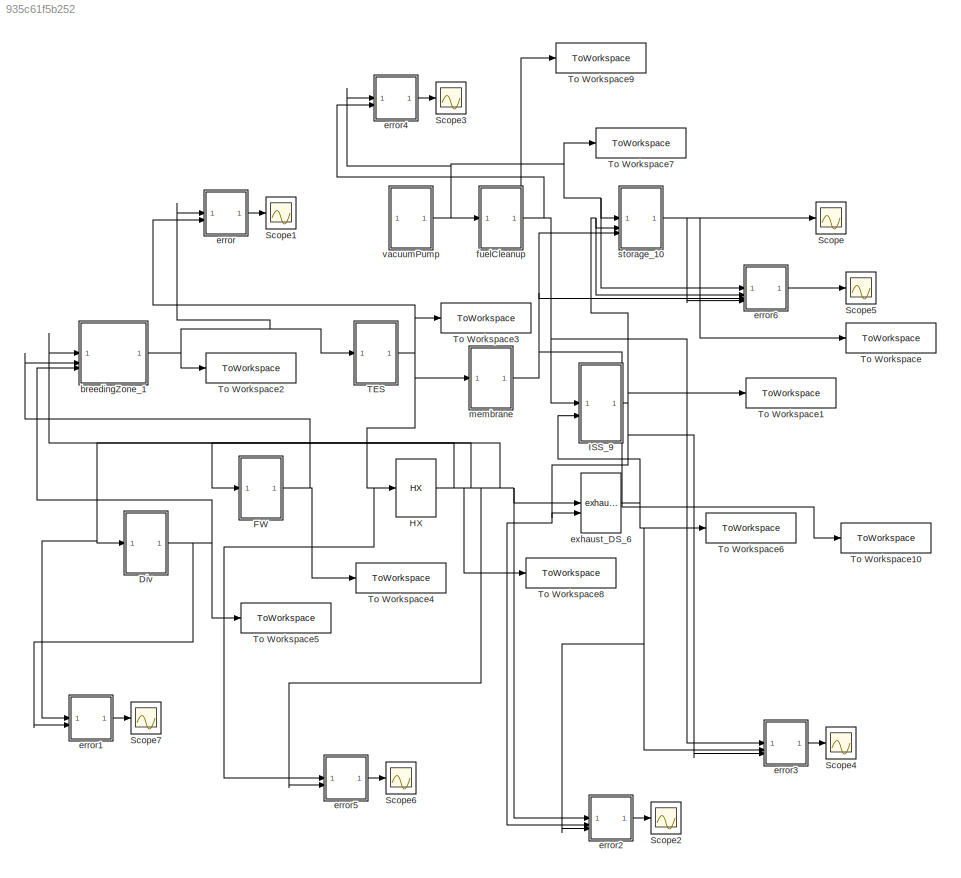
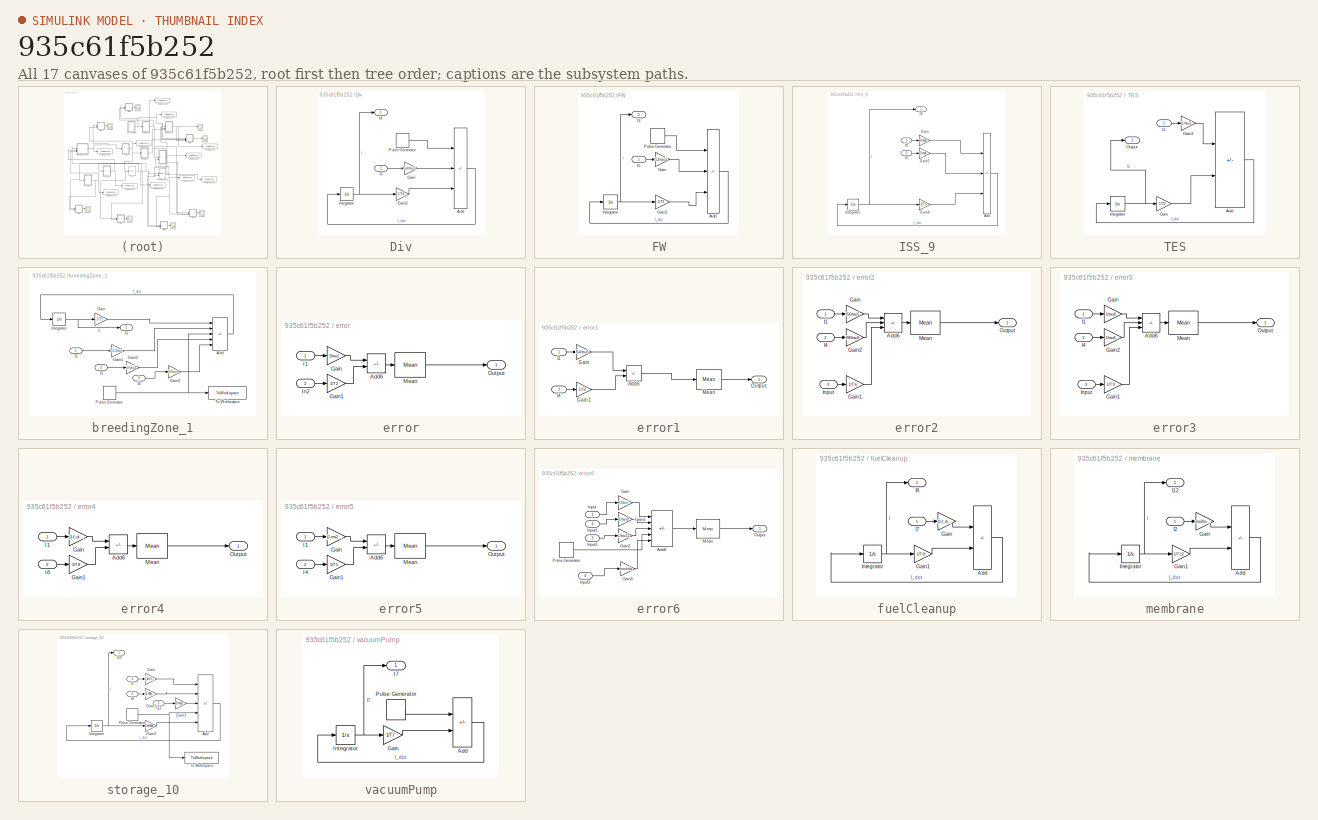
[diagram: thumbnail index - all 17 canvases of the model, root first then tree order]
MODEL slx_935c61f5b252
KIND model
CONFIG AbsTol = auto
CONFIG EnableMultiTasking = off
CONFIG FixedStep = auto
CONFIG MaxStep = auto
CONFIG MinStep = auto
CONFIG RelTol = 1e-4
CONFIG SampleTimeConstraint = Unconstrained
CONFIG SolverName = VariableStepAuto
CONFIG StartTime = 0.0
CONFIG StopTime = sim_time
BLOCK [SubSystem] Div
  AncestorBlock = arc/divertor_4
  LibrarySourceBlock = arc/divertor_4
BLOCK [Sum] Div/Add
  IconShape = rectangular
  Inputs = ++-
BLOCK [Gain] Div/Gain
  Gain = f54/tau5
BLOCK [Gain] Div/Gain2
  Gain = 1/T4
BLOCK [Outport] Div/I4
BLOCK [Inport] Div/I5
BLOCK [Integrator] Div/Integrator
BLOCK [DiscretePulseGenerator] Div/Pulse Generator
  Amplitude = fp4*N_dot/TBE
  Period = 1800
  PulseType = Time based
  PulseWidth = AF
BLOCK [SubSystem] FW
  AncestorBlock = arc/FW_3
  LibrarySourceBlock = arc/FW_3
BLOCK [Sum] FW/Add
  IconShape = rectangular
  Inputs = ++-
BLOCK [Gain] FW/Gain
  Gain = f53/tau5
BLOCK [Gain] FW/Gain2
  Gain = 1/T3
BLOCK [Outport] FW/I3
BLOCK [Inport] FW/I5
BLOCK [Integrator] FW/Integrator
BLOCK [DiscretePulseGenerator] FW/Pulse Generator
  Amplitude = fp3*N_dot/TBE
  Period = 1800
  PulseType = Time based
  PulseWidth = AF
BLOCK [Reference] HX  REF=arc/HX  (lib defined in slx_1c6c746fb95a, slx_383ab6a6d68a, +1 more)
  SourceBlock = arc/HX
  SourceType = SubSystem
  Tag = HX
BLOCK [SubSystem] ISS_9
  AncestorBlock = arc/ISS_9
  LibrarySourceBlock = arc/ISS_9
BLOCK [Sum] ISS_9/Add
  IconShape = rectangular
  Inputs = ++-
BLOCK [Gain] ISS_9/Gain
  Gain = 1/tau8
BLOCK [Gain] ISS_9/Gain1
  Gain = 1/tau6
BLOCK [Gain] ISS_9/Gain4
  Gain = 1/T9
BLOCK [Inport] ISS_9/I6
  Port = 2
BLOCK [Inport] ISS_9/I8
BLOCK [Outport] ISS_9/I9
BLOCK [Integrator] ISS_9/Integrator
BLOCK [Scope] Scope
  Floating = off
  NumInputPorts = 1
  ScopeSpecificationString = Simulink.scopes.TimeScopeBlockCfg('CurrentConfiguration', extmgr.ConfigurationSet(extmgr.Configuration('Core','General UI',true),extmgr.Configuration('Core','Source UI',true),extmgr.Configuration('Sources','WiredSimulink',true,'DataLogging',true),extmgr.Configuration('Visuals','Time Domain',true,'SerializedDisplays',{struct('MinYLimReal','0.58142','MaxYLimReal','4.3803','YLabelReal','','MinYLimMag...<+1343ch>
BLOCK [Scope] Scope1
  Floating = off
  NumInputPorts = 1
  ScopeSpecificationString = Simulink.scopes.TimeScopeBlockCfg('CurrentConfiguration', extmgr.ConfigurationSet(extmgr.Configuration('Core','General UI',true),extmgr.Configuration('Core','Source UI',true),extmgr.Configuration('Sources','WiredSimulink',true,'DataLoggingVariableName','ScopeData1'),extmgr.Configuration('Visuals','Time Domain',true,'SerializedDisplays',{struct('MinYLimReal','-0.0000000007','MaxYLimReal','0.0000000...<+1423ch>
BLOCK [Scope] Scope2
  Floating = off
  NumInputPorts = 1
  ScopeSpecificationString = Simulink.scopes.TimeScopeBlockCfg('CurrentConfiguration', extmgr.ConfigurationSet(extmgr.Configuration('Core','General UI',true),extmgr.Configuration('Core','Source UI',true),extmgr.Configuration('Sources','WiredSimulink',true,'DataLoggingVariableName','ScopeData2'),extmgr.Configuration('Visuals','Time Domain',true,'SerializedDisplays',{struct('MinYLimReal','-0.00000004','MaxYLimReal','0.0000004',...<+1385ch>
BLOCK [Scope] Scope3
  Floating = off
  NumInputPorts = 1
  ScopeSpecificationString = Simulink.scopes.TimeScopeBlockCfg('CurrentConfiguration', extmgr.ConfigurationSet(extmgr.Configuration('Core','General UI',true),extmgr.Configuration('Core','Source UI',true),extmgr.Configuration('Sources','WiredSimulink',true,'DataLoggingVariableName','ScopeData4'),extmgr.Configuration('Visuals','Time Domain',true,'SerializedDisplays',{struct('MinYLimReal','-0.000002','MaxYLimReal','0.000014','YL...<+1373ch>
BLOCK [Scope] Scope4
  Floating = off
  NumInputPorts = 1
  ScopeSpecificationString = Simulink.scopes.TimeScopeBlockCfg('CurrentConfiguration', extmgr.ConfigurationSet(extmgr.Configuration('Core','General UI',true),extmgr.Configuration('Core','Source UI',true),extmgr.Configuration('Sources','WiredSimulink',true,'DataLoggingVariableName','ScopeData3'),extmgr.Configuration('Visuals','Time Domain',true,'SerializedDisplays',{struct('MinYLimReal','-0.0000000007','MaxYLimReal','0.0000000...<+1424ch>
BLOCK [Scope] Scope5
  Floating = off
  NumInputPorts = 1
  ScopeSpecificationString = Simulink.scopes.TimeScopeBlockCfg('CurrentConfiguration', extmgr.ConfigurationSet(extmgr.Configuration('Core','General UI',true),extmgr.Configuration('Core','Source UI',true),extmgr.Configuration('Sources','WiredSimulink',true,'DataLogging',true,'DataLoggingVariableName','ScopeData1'),extmgr.Configuration('Visuals','Time Domain',true,'SerializedDisplays',{struct('MinYLimReal','-0.000004','MaxYLimR...<+1415ch>
BLOCK [Scope] Scope6
  Floating = off
  NumInputPorts = 1
  ScopeSpecificationString = Simulink.scopes.TimeScopeBlockCfg('CurrentConfiguration', extmgr.ConfigurationSet(extmgr.Configuration('Core','General UI',true),extmgr.Configuration('Core','Source UI',true),extmgr.Configuration('Sources','WiredSimulink',true,'DataLoggingVariableName','ScopeData5'),extmgr.Configuration('Visuals','Time Domain',true,'SerializedDisplays',{struct('MinYLimReal','-0.00000000004','MaxYLimReal','0.000000...<+1413ch>
BLOCK [Scope] Scope7
  Floating = off
  NumInputPorts = 1
  ScopeSpecificationString = Simulink.scopes.TimeScopeBlockCfg('CurrentConfiguration', extmgr.ConfigurationSet(extmgr.Configuration('Core','General UI',true),extmgr.Configuration('Core','Source UI',true),extmgr.Configuration('Sources','WiredSimulink',true,'DataLoggingVariableName','ScopeData1'),extmgr.Configuration('Visuals','Time Domain',true,'SerializedDisplays',{struct('MinYLimReal','-0.000000006','MaxYLimReal','0.00000002...<+1397ch>
BLOCK [SubSystem] TES
  AncestorBlock = arc/TES_2
  LibrarySourceBlock = arc/TES_2
BLOCK [Sum] TES/Add
  IconShape = rectangular
  Inputs = +-
BLOCK [Gain] TES/Gain
  Gain = 1/T2
BLOCK [Gain] TES/Gain1
  Gain = 1/tau1
BLOCK [Inport] TES/I1
BLOCK [Integrator] TES/Integrator
BLOCK [Outport] TES/Output
  IconDisplay = Signal name
BLOCK [ToWorkspace] To Workspace
  FixptAsFi = on
  MaxDataPoints = inf
  SampleTime = -1
  VariableName = I_11
BLOCK [ToWorkspace] To Workspace1
  FixptAsFi = on
  MaxDataPoints = inf
  SampleTime = -1
  VariableName = I_9
BLOCK [ToWorkspace] To Workspace10
  FixptAsFi = on
  MaxDataPoints = inf
  SampleTime = -1
  VariableName = I_12
BLOCK [ToWorkspace] To Workspace2
  FixptAsFi = on
  MaxDataPoints = inf
  SampleTime = -1
  VariableName = I_1
BLOCK [ToWorkspace] To Workspace3
  FixptAsFi = on
  MaxDataPoints = inf
  SampleTime = -1
  VariableName = I_2
BLOCK [ToWorkspace] To Workspace4
  FixptAsFi = on
  MaxDataPoints = inf
  SampleTime = -1
  VariableName = I_3
BLOCK [ToWorkspace] To Workspace5
  FixptAsFi = on
  MaxDataPoints = inf
  SampleTime = -1
  VariableName = I_4
BLOCK [ToWorkspace] To Workspace6
  FixptAsFi = on
  MaxDataPoints = inf
  SampleTime = -1
  VariableName = I_6
BLOCK [ToWorkspace] To Workspace7
  FixptAsFi = on
  MaxDataPoints = inf
  SampleTime = -1
  VariableName = I_7
BLOCK [ToWorkspace] To Workspace8
  FixptAsFi = on
  MaxDataPoints = inf
  SampleTime = -1
  VariableName = I_5
BLOCK [ToWorkspace] To Workspace9
  FixptAsFi = on
  MaxDataPoints = inf
  SampleTime = -1
  VariableName = I_8
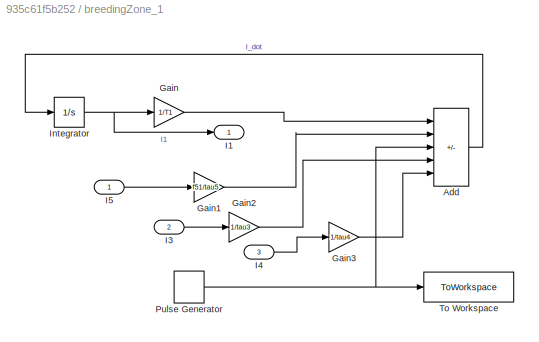
BLOCK [SubSystem] breedingZone_1
  AncestorBlock = arc/breedingZone_1
  LibrarySourceBlock = arc/breedingZone_1
BLOCK [Sum] breedingZone_1/Add
  IconShape = rectangular
  Inputs = -++++
BLOCK [Gain] breedingZone_1/Gain
  Gain = 1/T1
BLOCK [Gain] breedingZone_1/Gain1
  Gain = f51/tau5
BLOCK [Gain] breedingZone_1/Gain2
  Gain = 1/tau3
BLOCK [Gain] breedingZone_1/Gain3
  Gain = 1/tau4
BLOCK [Outport] breedingZone_1/I1
  IconDisplay = Signal name
BLOCK [Inport] breedingZone_1/I3
  IconDisplay = Signal name
  Port = 2
BLOCK [Inport] breedingZone_1/I4
  IconDisplay = Signal name
  Port = 3
BLOCK [Inport] breedingZone_1/I5
  IconDisplay = Signal name
BLOCK [Integrator] breedingZone_1/Integrator
BLOCK [DiscretePulseGenerator] breedingZone_1/Pulse Generator
  Amplitude = N_dot * TBR
  Period = 1800
  PulseType = Time based
  PulseWidth = AF
BLOCK [ToWorkspace] breedingZone_1/To Workspace
  FixptAsFi = on
  MaxDataPoints = inf
  SampleTime = -1
  VariableName = T_generation
BLOCK [SubSystem] error
BLOCK [Sum] error/Add6
  IconShape = rectangular
  Inputs = +-
BLOCK [Gain] error/Gain
  Gain = 1/tau1
BLOCK [Gain] error/Gain1
  Gain = 1/T2
BLOCK [Inport] error/I1
BLOCK [Inport] error/In2
  Port = 2
BLOCK [Reference] error/Mean  REF=spsMeanLib/Mean
  LibrarySourceBlock = sps_lib/Sensors and Measurements/Mean
  SourceBlock = spsMeanLib/Mean
  SourceType = Mean
BLOCK [Outport] error/Output
BLOCK [SubSystem] error1
BLOCK [Sum] error1/Add6
  IconShape = rectangular
  Inputs = +-
BLOCK [Gain] error1/Gain
  Gain = f54/tau5
BLOCK [Gain] error1/Gain1
  Gain = 1/T4
BLOCK [Inport] error1/I1
BLOCK [Inport] error1/I4
  Port = 2
BLOCK [Reference] error1/Mean  REF=spsMeanLib/Mean
  LibrarySourceBlock = sps_lib/Sensors and Measurements/Mean
  SourceBlock = spsMeanLib/Mean
  SourceType = Mean
BLOCK [Outport] error1/Output
BLOCK [SubSystem] error2
BLOCK [Sum] error2/Add6
  IconShape = rectangular
  Inputs = ++-
BLOCK [Gain] error2/Gain
  Gain = f56/tau5
BLOCK [Gain] error2/Gain1
  Gain = 1/T6
BLOCK [Gain] error2/Gain2
  Gain = f96/tau9
BLOCK [Inport] error2/I1
BLOCK [Inport] error2/I4
  Port = 2
BLOCK [Inport] error2/Input
  Port = 3
BLOCK [Reference] error2/Mean  REF=spsMeanLib/Mean
  LibrarySourceBlock = sps_lib/Sensors and Measurements/Mean
  SourceBlock = spsMeanLib/Mean
  SourceType = Mean
BLOCK [Outport] error2/Output
BLOCK [SubSystem] error3
BLOCK [Sum] error3/Add6
  IconShape = rectangular
  Inputs = ++-
BLOCK [Gain] error3/Gain
  Gain = 1/tau8
BLOCK [Gain] error3/Gain1
  Gain = 1/T9
BLOCK [Gain] error3/Gain2
  Gain = 1/tau6
BLOCK [Inport] error3/I1
BLOCK [Inport] error3/I4
  Port = 2
BLOCK [Inport] error3/Input
  Port = 3
BLOCK [Reference] error3/Mean  REF=spsMeanLib/Mean
  LibrarySourceBlock = sps_lib/Sensors and Measurements/Mean
  SourceBlock = spsMeanLib/Mean
  SourceType = Mean
BLOCK [Outport] error3/Output
BLOCK [SubSystem] error4
BLOCK [Sum] error4/Add6
  IconShape = rectangular
  Inputs = +-
BLOCK [Gain] error4/Gain
  Gain = (1-f_dir)/tau7
BLOCK [Gain] error4/Gain1
  Gain = 1/T8
BLOCK [Inport] error4/I1
BLOCK [Inport] error4/I8
  Port = 2
BLOCK [Reference] error4/Mean  REF=spsMeanLib/Mean
  LibrarySourceBlock = sps_lib/Sensors and Measurements/Mean
  SourceBlock = spsMeanLib/Mean
  SourceType = Mean
BLOCK [Outport] error4/Output
BLOCK [SubSystem] error5
BLOCK [Sum] error5/Add6
  IconShape = rectangular
  Inputs = +-
BLOCK [Gain] error5/Gain
  Gain = (1-eta2)/tau2
BLOCK [Gain] error5/Gain1
  Gain = 1/T5
BLOCK [Inport] error5/I1
BLOCK [Inport] error5/I4
  Port = 2
BLOCK [Reference] error5/Mean  REF=spsMeanLib/Mean
  LibrarySourceBlock = sps_lib/Sensors and Measurements/Mean
  SourceBlock = spsMeanLib/Mean
  SourceType = Mean
BLOCK [Outport] error5/Output
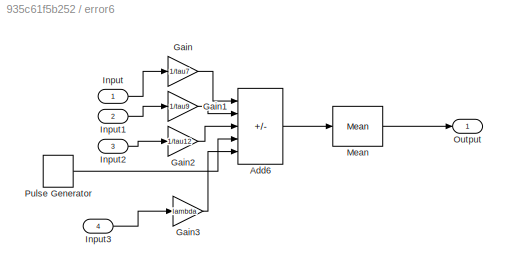
BLOCK [SubSystem] error6
BLOCK [Sum] error6/Add6
  IconShape = rectangular
  Inputs = +++--
BLOCK [Gain] error6/Gain
  Gain = 1/tau7
BLOCK [Gain] error6/Gain1
  Gain = 1/tau9
BLOCK [Gain] error6/Gain2
  Gain = 1/tau12
BLOCK [Gain] error6/Gain3
  Gain = lambda
BLOCK [Inport] error6/Input
BLOCK [Inport] error6/Input1
  Port = 2
BLOCK [Inport] error6/Input2
  Port = 3
BLOCK [Inport] error6/Input3
  Port = 4
BLOCK [Reference] error6/Mean  REF=spsMeanLib/Mean
  LibrarySourceBlock = sps_lib/Sensors and Measurements/Mean
  SourceBlock = spsMeanLib/Mean
  SourceType = Mean
BLOCK [Outport] error6/Output
BLOCK [DiscretePulseGenerator] error6/Pulse Generator
  Amplitude = N_dot/TBE
  Period = 1800
  PulseType = Time based
  PulseWidth = AF
BLOCK [Reference] exhaust_DS_6  REF=arc/exhaust_DS  (lib defined in slx_1c6c746fb95a, slx_383ab6a6d68a, +1 more)
  SourceBlock = arc/exhaust_DS
  SourceType = SubSystem
BLOCK [SubSystem] fuelCleanup
  AncestorBlock = arc/fuelCleanUp
BLOCK [Sum] fuelCleanup/Add
  IconShape = rectangular
  Inputs = +-
BLOCK [Gain] fuelCleanup/Gain
  Gain = (1-f_dir)/tau7
BLOCK [Gain] fuelCleanup/Gain1
  Gain = 1/T8
BLOCK [Inport] fuelCleanup/I7
BLOCK [Outport] fuelCleanup/I8
BLOCK [Integrator] fuelCleanup/Integrator
BLOCK [SubSystem] membrane
  AncestorBlock = arc/fuelCleanUp_8
  LibrarySourceBlock = arc/fuelCleanUp_8
BLOCK [Sum] membrane/Add
  IconShape = rectangular
  Inputs = +-
BLOCK [Gain] membrane/Gain
  Gain = eta2/tau2
BLOCK [Gain] membrane/Gain1
  Gain = 1/T12
BLOCK [Outport] membrane/I12
BLOCK [Inport] membrane/I2
BLOCK [Integrator] membrane/Integrator
BLOCK [SubSystem] storage_10
  AncestorBlock = arc/storage_10
  LibrarySourceBlock = arc/storage_10
BLOCK [Sum] storage_10/Add
  IconShape = rectangular
  Inputs = +++--
BLOCK [Gain] storage_10/Gain
  Gain = f_dir/tau7
BLOCK [Gain] storage_10/Gain1
  Gain = (1-f96)/tau9
BLOCK [Gain] storage_10/Gain2
  Gain = lambda
BLOCK [Gain] storage_10/Gain3
  Gain = 1/tau12
BLOCK [Outport] storage_10/I10
BLOCK [Inport] storage_10/I12
  Port = 3
BLOCK [Inport] storage_10/I7
BLOCK [Inport] storage_10/I9
  Port = 2
BLOCK [Integrator] storage_10/Integrator
  InitialCondition = I_s_0
BLOCK [DiscretePulseGenerator] storage_10/Pulse Generator
  Amplitude = N_dot/TBE
  Period = 1800
  PulseType = Time based
  PulseWidth = AF
BLOCK [ToWorkspace] storage_10/To Workspace
  FixptAsFi = on
  MaxDataPoints = inf
  SampleTime = -1
  VariableName = burn
BLOCK [SubSystem] vacuumPump
  AncestorBlock = arc/pump_7
  LibrarySourceBlock = arc/pump_7
BLOCK [Sum] vacuumPump/Add
  IconShape = rectangular
  Inputs = +-
BLOCK [Gain] vacuumPump/Gain
  Gain = 1/T7
BLOCK [Outport] vacuumPump/I7
  IconDisplay = Signal name
BLOCK [Integrator] vacuumPump/Integrator
BLOCK [DiscretePulseGenerator] vacuumPump/Pulse Generator
  Amplitude = (1-TBE-fp3-fp4)*N_dot/TBE
  Period = 1800
  PulseType = Time based
  PulseWidth = AF
NET Div:1 -> To Workspace5:1, breedingZone_1:3, error1:2
NET FW:1 -> To Workspace4:1, breedingZone_1:2
NET HX:1 -> Div:1, FW:1, To Workspace8:1, breedingZone_1:1, error1:1, error2:1, error5:2, exhaust_DS_6:1
NET ISS_9:1 -> To Workspace1:1, error2:2, error3:3, error6:2, exhaust_DS_6:2, storage_10:2
NET TES:1 -> HX:1, To Workspace3:1, error5:1, error:2, membrane:1
NET breedingZone_1:1 -> TES:1, To Workspace2:1, error:1
LINE error/Add6:1 -> error/Mean:1
LINE error/Gain1:1 -> error/Add6:2
LINE error/Gain:1 -> error/Add6:1
LINE error/I1:1 -> error/Gain:1
LINE error/In2:1 -> error/Gain1:1
LINE error/Mean:1 -> error/Output:1
LINE error1/Add6:1 -> error1/Mean:1
LINE error1/Gain1:1 -> error1/Add6:2
LINE error1/Gain:1 -> error1/Add6:1
LINE error1/I1:1 -> error1/Gain:1
LINE error1/I4:1 -> error1/Gain1:1
LINE error1/Mean:1 -> error1/Output:1
LINE error1:1 -> Scope7:1
LINE error2/Add6:1 -> error2/Mean:1
LINE error2/Gain1:1 -> error2/Add6:3
LINE error2/Gain2:1 -> error2/Add6:2
LINE error2/Gain:1 -> error2/Add6:1
LINE error2/I1:1 -> error2/Gain:1
LINE error2/I4:1 -> error2/Gain2:1
LINE error2/Input:1 -> error2/Gain1:1
LINE error2/Mean:1 -> error2/Output:1
LINE error2:1 -> Scope2:1
LINE error3/Add6:1 -> error3/Mean:1
LINE error3/Gain1:1 -> error3/Add6:3
LINE error3/Gain2:1 -> error3/Add6:2
LINE error3/Gain:1 -> error3/Add6:1
LINE error3/I1:1 -> error3/Gain:1
LINE error3/I4:1 -> error3/Gain2:1
LINE error3/Input:1 -> error3/Gain1:1
LINE error3/Mean:1 -> error3/Output:1
LINE error3:1 -> Scope4:1
LINE error4/Add6:1 -> error4/Mean:1
LINE error4/Gain1:1 -> error4/Add6:2
LINE error4/Gain:1 -> error4/Add6:1
LINE error4/I1:1 -> error4/Gain:1
LINE error4/I8:1 -> error4/Gain1:1
LINE error4/Mean:1 -> error4/Output:1
LINE error4:1 -> Scope3:1
LINE error5/Add6:1 -> error5/Mean:1
LINE error5/Gain1:1 -> error5/Add6:2
LINE error5/Gain:1 -> error5/Add6:1
LINE error5/I1:1 -> error5/Gain:1
LINE error5/I4:1 -> error5/Gain1:1
LINE error5/Mean:1 -> error5/Output:1
LINE error5:1 -> Scope6:1
LINE error6/Add6:1 -> error6/Mean:1
LINE error6/Gain1:1 -> error6/Add6:2
LINE error6/Gain2:1 -> error6/Add6:3
LINE error6/Gain3:1 -> error6/Add6:5
LINE error6/Gain:1 -> error6/Add6:1
LINE error6/Input1:1 -> error6/Gain1:1
LINE error6/Input2:1 -> error6/Gain2:1
LINE error6/Input3:1 -> error6/Gain3:1
LINE error6/Input:1 -> error6/Gain:1
LINE error6/Mean:1 -> error6/Output:1
LINE error6/Pulse Generator:1 -> error6/Add6:4
LINE error6:1 -> Scope5:1
LINE error:1 -> Scope1:1
NET exhaust_DS_6:1 -> ISS_9:2, To Workspace6:1, error2:3, error3:2
NET fuelCleanup:1 -> ISS_9:1, To Workspace9:1, error3:1, error4:2
NET membrane:1 -> To Workspace10:1, error6:3, storage_10:3
NET storage_10:1 -> Scope:1, To Workspace:1, error6:4
NET vacuumPump:1 -> To Workspace7:1, error4:1, error6:1, fuelCleanup:1, storage_10:1
note: NET lines group one-source signal fan-out (src -> all destinations, sorted); 1:1 wires keep LINE
